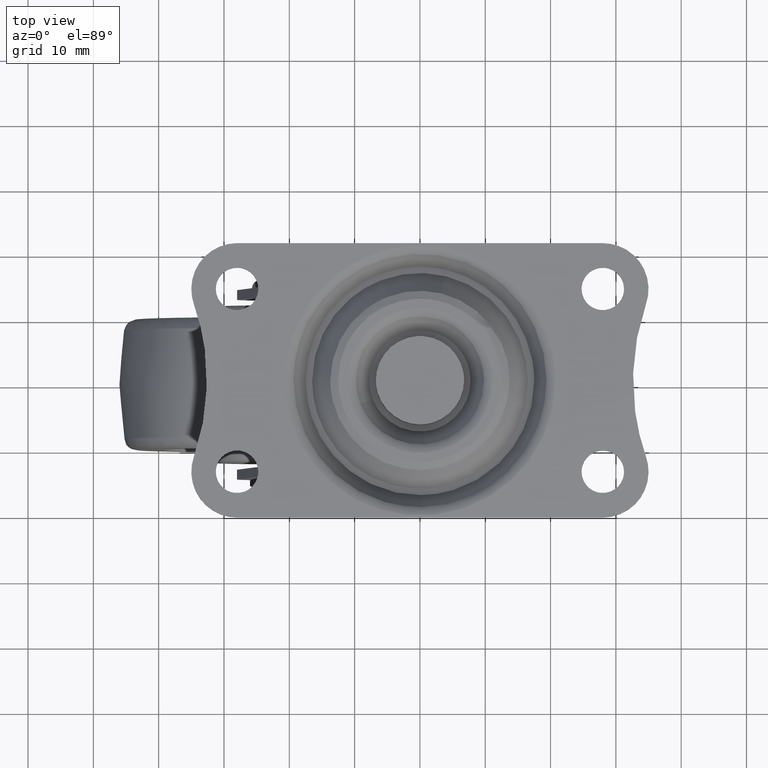
[diagram: clean part render]
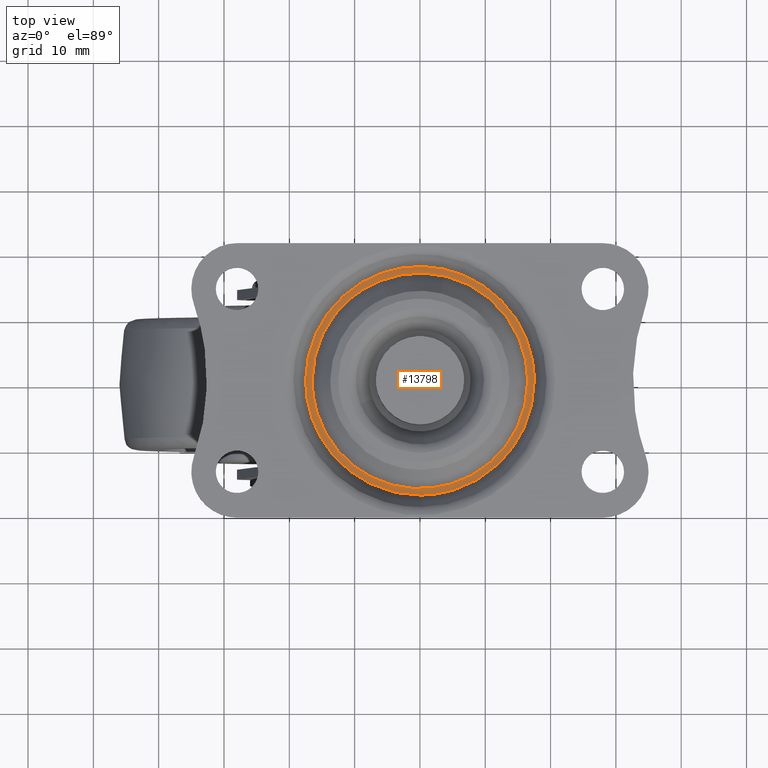
[diagram: same view with one face highlighted and labeled with its STEP entity id]
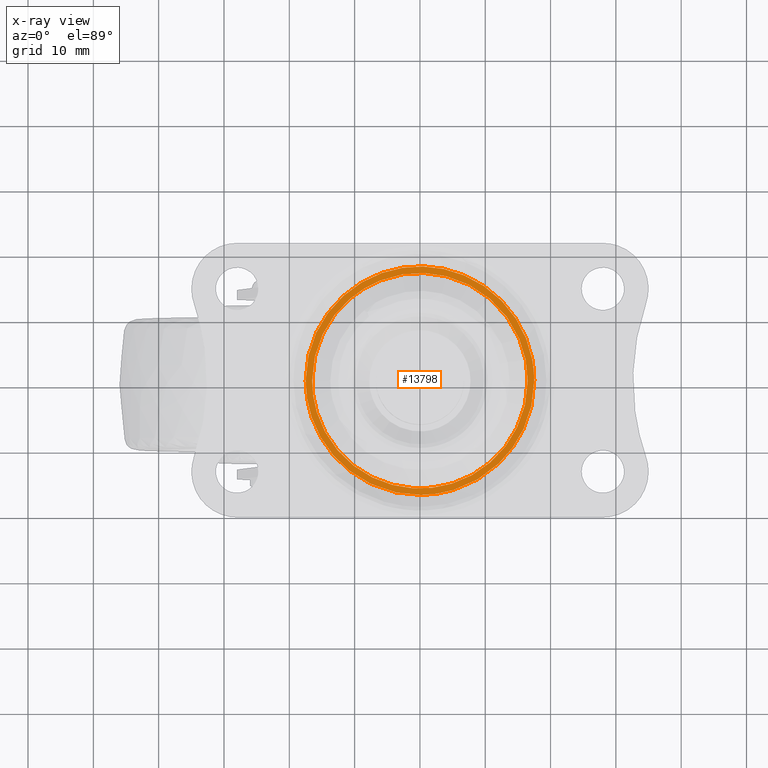
[diagram: x-ray of the same camera — body ghosted, the highlighted face saturated]
A machine part, top view. The second image highlights one B-rep face of the part: STEP entity #13798.
The next image is the same camera in x-ray: the body ghosted, the highlighted face saturated — about 0% of this face is hidden behind the body in this view.
In plain terms, the highlighted face is a freeform B-spline surface patch.
Its self-contained STEP definition (entity closure, byte-faithful):
#9596=CARTESIAN_POINT('',(-6.047270240952413,15.351889871702960,-2.799999200588418));
#9597=VERTEX_POINT('',#9596);
#9603=CARTESIAN_POINT('',(-16.500000000000000,0.0,-2.799999200588230));
#9604=VERTEX_POINT('',#9603);
#9605=CARTESIAN_POINT('',(-16.500000000000000,0.0,-2.799999200588230));
#9606=CARTESIAN_POINT('',(-16.500000000000004,11.234450120839618,-2.799999200588231));
#9607=CARTESIAN_POINT('',(-6.047270240952413,15.351889871702959,-2.799999200588418));
#9615=(BOUNDED_CURVE()B_SPLINE_CURVE(2,(#9605,#9606,#9607),.UNSPECIFIED.,.F.,.U.)B_SPLINE_CURVE_WITH_KNOTS((3,3),(0.0,0.187769642892599),.UNSPECIFIED.)CURVE()GEOMETRIC_REPRESENTATION_ITEM()RATIONAL_B_SPLINE_CURVE((1.0,0.780014179590936,0.890481630699036))REPRESENTATION_ITEM(''));
#9616=EDGE_CURVE('',#9604,#9597,#9615,.T.);
#9618=CARTESIAN_POINT('',(16.500000000000000,0.0,-2.799999200588230));
#9619=VERTEX_POINT('',#9618);
#9620=CARTESIAN_POINT('',(16.500000000000000,0.0,-2.799999200588230));
#9621=CARTESIAN_POINT('',(16.499999999999993,-16.499999999999993,-2.799999200588230));
#9622=CARTESIAN_POINT('',(0.0,-16.500000000000000,-2.799999200588230));
#9623=CARTESIAN_POINT('',(-16.499999999999993,-16.499999999999993,-2.799999200588230));
#9624=CARTESIAN_POINT('',(-16.500000000000000,0.0,-2.799999200588230));
#9632=(BOUNDED_CURVE()B_SPLINE_CURVE(2,(#9620,#9621,#9622,#9623,#9624),.UNSPECIFIED.,.F.,.U.)B_SPLINE_CURVE_WITH_KNOTS((3,2,3),(0.500000000000000,0.750000000000000,1.0),.UNSPECIFIED.)CURVE()GEOMETRIC_REPRESENTATION_ITEM()RATIONAL_B_SPLINE_CURVE((1.0,0.707106781186548,1.0,0.707106781186548,1.0))REPRESENTATION_ITEM(''));
#9633=EDGE_CURVE('',#9619,#9604,#9632,.T.);
#9635=CARTESIAN_POINT('',(3.999688971690521,16.007888309513501,-2.799999200593146));
#9636=VERTEX_POINT('',#9635);
#9637=CARTESIAN_POINT('',(3.999688971690522,16.007888309513504,-2.799999200593147));
#9638=CARTESIAN_POINT('',(16.500000000000004,12.884593394128984,-2.799999200588230));
#9639=CARTESIAN_POINT('',(16.500000000000000,0.0,-2.799999200588230));
#9647=(BOUNDED_CURVE()B_SPLINE_CURVE(2,(#9637,#9638,#9639),.UNSPECIFIED.,.F.,.U.)B_SPLINE_CURVE_WITH_KNOTS((3,3),(0.291390884983418,0.500000000000000),.UNSPECIFIED.)CURVE()GEOMETRIC_REPRESENTATION_ITEM()RATIONAL_B_SPLINE_CURVE((0.919072283174765,0.755599219315870,1.0))REPRESENTATION_ITEM(''));
#9648=EDGE_CURVE('',#9636,#9619,#9647,.T.);
#9688=CARTESIAN_POINT('',(-6.047270240952413,15.351889871702959,-2.799999200588418));
#9689=CARTESIAN_POINT('',(-3.132622879761503,16.499999999999993,-2.799999200588230));
#9690=CARTESIAN_POINT('',(0.0,16.500000000000000,-2.799999200588230));
#9691=CARTESIAN_POINT('',(2.030118579377406,16.500000000000004,-2.799999200588231));
#9692=CARTESIAN_POINT('',(3.999688971690521,16.007888309513497,-2.799999200593146));
#9700=(BOUNDED_CURVE()B_SPLINE_CURVE(2,(#9688,#9689,#9690,#9691,#9692),.UNSPECIFIED.,.F.,.U.)B_SPLINE_CURVE_WITH_KNOTS((3,2,3),(0.187769642892599,0.250000000000000,0.291390884983418),.UNSPECIFIED.)CURVE()GEOMETRIC_REPRESENTATION_ITEM()RATIONAL_B_SPLINE_CURVE((0.890481630699036,0.927092601595611,1.0,0.951507561870677,0.919072283174765))REPRESENTATION_ITEM(''));
#9701=EDGE_CURVE('',#9597,#9636,#9700,.T.);
#9733=CARTESIAN_POINT('',(17.500000000000000,0.0,-2.799999199411765));
#9734=VERTEX_POINT('',#9733);
#9735=CARTESIAN_POINT('',(12.068686748719699,-12.672679281086440,-2.799999199411751));
#9736=VERTEX_POINT('',#9735);
#9737=CARTESIAN_POINT('',(17.500000000000000,0.0,-2.799999199411765));
#9738=CARTESIAN_POINT('',(17.500000000000000,-7.500227835738796,-2.799999199411766));
#9739=CARTESIAN_POINT('',(12.068686748719699,-12.672679281086438,-2.799999199411750));
#9747=(BOUNDED_CURVE()B_SPLINE_CURVE(2,(#9737,#9738,#9739),.UNSPECIFIED.,.F.,.U.)B_SPLINE_CURVE_WITH_KNOTS((3,3),(0.500000000000000,0.628682976150469),.UNSPECIFIED.)CURVE()GEOMETRIC_REPRESENTATION_ITEM()RATIONAL_B_SPLINE_CURVE((1.0,0.849238515635177,0.853680523245777))REPRESENTATION_ITEM(''));
#9748=EDGE_CURVE('',#9734,#9736,#9747,.T.);
#9836=CARTESIAN_POINT('',(0.152714371234176,-17.499333653624099,-2.799999199409502));
#9837=VERTEX_POINT('',#9836);
#9843=CARTESIAN_POINT('',(-17.500000000000000,0.0,-2.799999199411765));
#9844=VERTEX_POINT('',#9843);
#9845=CARTESIAN_POINT('',(0.152714371234176,-17.499333653624095,-2.799999199409502));
#9846=CARTESIAN_POINT('',(0.076358639374897,-17.499999999999996,-2.799999199411765));
#9847=CARTESIAN_POINT('',(0.0,-17.500000000000000,-2.799999199411765));
#9848=CARTESIAN_POINT('',(-17.499999999999996,-17.499999999999996,-2.799999199411765));
#9849=CARTESIAN_POINT('',(-17.500000000000000,0.0,-2.799999199411765));
#9857=(BOUNDED_CURVE()B_SPLINE_CURVE(2,(#9845,#9846,#9847,#9848,#9849),.UNSPECIFIED.,.F.,.U.)B_SPLINE_CURVE_WITH_KNOTS((3,2,3),(0.748460105664759,0.750000000000000,1.0),.UNSPECIFIED.)CURVE()GEOMETRIC_REPRESENTATION_ITEM()RATIONAL_B_SPLINE_CURVE((0.996414028099818,0.998195901566075,1.0,0.707106781186548,1.0))REPRESENTATION_ITEM(''));
#9858=EDGE_CURVE('',#9837,#9844,#9857,.T.);
#9860=CARTESIAN_POINT('',(-17.500000000000000,0.0,-2.799999199411765));
#9861=CARTESIAN_POINT('',(-17.499999999999996,17.499999999999996,-2.799999199411765));
#9862=CARTESIAN_POINT('',(0.0,17.500000000000000,-2.799999199411765));
#9863=CARTESIAN_POINT('',(17.499999999999996,17.499999999999996,-2.799999199411765));
#9864=CARTESIAN_POINT('',(17.500000000000000,0.0,-2.799999199411765));
#9872=(BOUNDED_CURVE()B_SPLINE_CURVE(2,(#9860,#9861,#9862,#9863,#9864),.UNSPECIFIED.,.F.,.U.)B_SPLINE_CURVE_WITH_KNOTS((3,2,3),(0.0,0.250000000000000,0.500000000000000),.UNSPECIFIED.)CURVE()GEOMETRIC_REPRESENTATION_ITEM()RATIONAL_B_SPLINE_CURVE((1.0,0.707106781186548,1.0,0.707106781186548,1.0))REPRESENTATION_ITEM(''));
#9873=EDGE_CURVE('',#9844,#9734,#9872,.T.);
#9892=CARTESIAN_POINT('',(12.068686748719697,-12.672679281086449,-2.799999199411751));
#9893=CARTESIAN_POINT('',(7.063807008387136,-17.439021461878824,-2.799999199411765));
#9894=CARTESIAN_POINT('',(0.152714371234176,-17.499333653624099,-2.799999199409502));
#9902=(BOUNDED_CURVE()B_SPLINE_CURVE(2,(#9892,#9893,#9894),.UNSPECIFIED.,.F.,.U.)B_SPLINE_CURVE_WITH_KNOTS((3,3),(0.628682976150470,0.748460105664760),.UNSPECIFIED.)CURVE()GEOMETRIC_REPRESENTATION_ITEM()RATIONAL_B_SPLINE_CURVE((0.853680523245777,0.857815109939330,0.996414028099819))REPRESENTATION_ITEM(''));
#9903=EDGE_CURVE('',#9736,#9837,#9902,.T.);
#13781=CARTESIAN_POINT('',(19.248249932163208,-19.247551095767211,-2.799999200000000));
#13782=CARTESIAN_POINT('',(-19.248250870936360,-19.247551095767211,-2.799999200000000));
#13783=CARTESIAN_POINT('',(19.248249932163208,19.248217624707411,-2.799999200000000));
#13784=CARTESIAN_POINT('',(-19.248250870936360,19.248217624707411,-2.799999200000000));
#13785=B_SPLINE_SURFACE_WITH_KNOTS('',1,1,((#13781,#13783),(#13782,#13784)),.UNSPECIFIED.,.F.,.F.,.U.,(2,2),(2,2),(0.0,38.496500803099579),(0.0,38.495768720474629),.UNSPECIFIED.);
#13786=ORIENTED_EDGE('',*,*,#9748,.F.);
#13787=ORIENTED_EDGE('',*,*,#9873,.F.);
#13788=ORIENTED_EDGE('',*,*,#9858,.F.);
#13789=ORIENTED_EDGE('',*,*,#9903,.F.);
#13790=EDGE_LOOP('',(#13786,#13787,#13788,#13789));
#13791=FACE_OUTER_BOUND('',#13790,.T.);
#13792=ORIENTED_EDGE('',*,*,#9633,.T.);
#13793=ORIENTED_EDGE('',*,*,#9616,.T.);
#13794=ORIENTED_EDGE('',*,*,#9701,.T.);
#13795=ORIENTED_EDGE('',*,*,#9648,.T.);
#13796=EDGE_LOOP('',(#13792,#13793,#13794,#13795));
#13797=FACE_BOUND('',#13796,.T.);
#13798=ADVANCED_FACE('',(#13791,#13797),#13785,.F.);